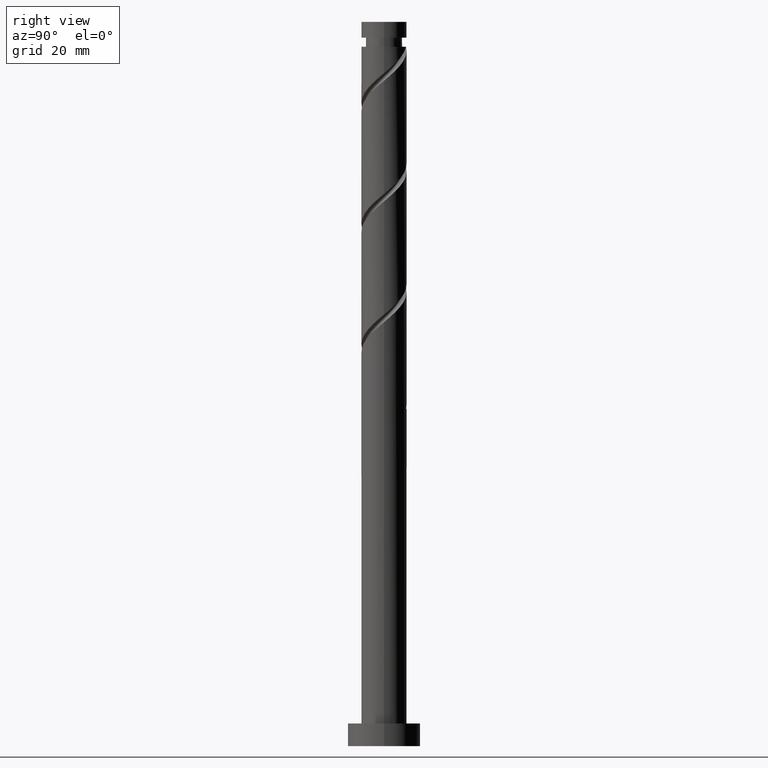
[diagram: clean part render]
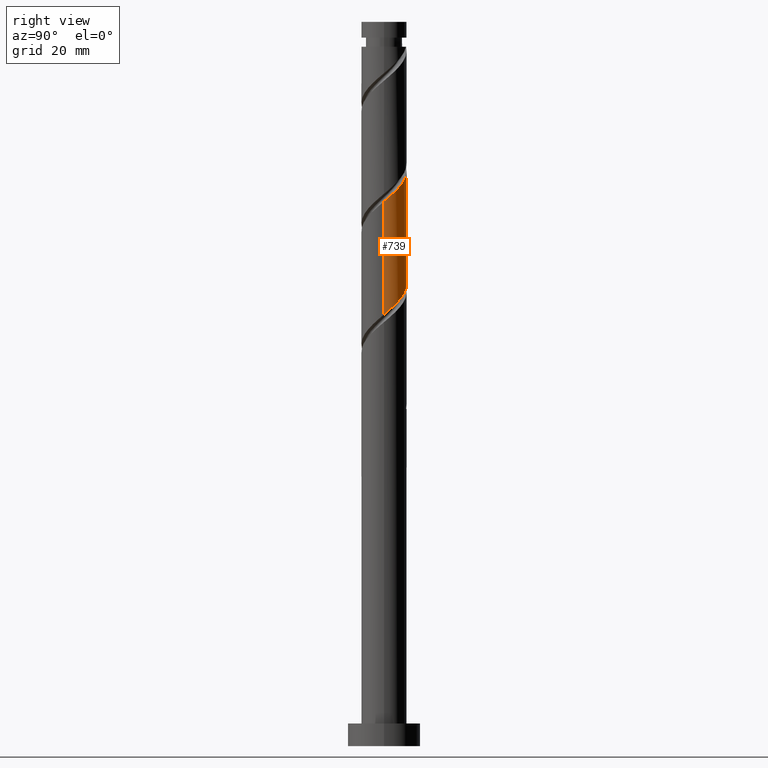
[diagram: same view with one face highlighted and labeled with its STEP entity id]
A machine part, right view. The second image highlights one B-rep face of the part: STEP entity #739.
In plain terms, the highlighted cylindrical surface (edge-blend (fillet) strip) has radius 5 mm, axis along (-0, -0, -1).
Its self-contained STEP definition (entity closure, byte-faithful):
#44 = EDGE_CURVE ( 'NONE', #786, #493, #669, .T. ) ;
#61 = CARTESIAN_POINT ( 'NONE',  ( -5.000000000000000000, 5.444282736072736138E-15, 108.6972831493244627 ) ) ;
#67 = VERTEX_POINT ( 'NONE', #547 ) ;
#78 = CARTESIAN_POINT ( 'NONE',  ( -3.051594711005884086, 3.960778928413059674, 104.8175256397205430 ) ) ;
#84 = AXIS2_PLACEMENT_3D ( 'NONE', #1584, #960, #1200 ) ;
#104 = CARTESIAN_POINT ( 'NONE',  ( 1.142085944100266204, 4.920614254530760512, 126.0296468518417612 ) ) ;
#108 = CARTESIAN_POINT ( 'NONE',  ( -5.000000000000007105, 2.886666395774807235E-15, 133.6650408573893003 ) ) ;
#121 =( BOUNDED_CURVE ( )  B_SPLINE_CURVE ( 2, ( #325, #1131, #1640, #1233, #618, #1480, #490, #986, #1141, #746, #602, #104, #1121, #1112, #843, #1495, #1257, #1488, #874, #1601, #714, #590, #1504, #1629, #482 ),
 .UNSPECIFIED., .F., .T. ) 
 B_SPLINE_CURVE_WITH_KNOTS ( ( 3, 2, 2, 2, 2, 2, 2, 2, 2, 2, 2, 2, 3 ),
 ( 0.4295252162417512731, 0.4318181818181817677, 0.4431818181818182323, 0.4545454545454545858, 0.4659090909090909394, 0.4772727272727272929, 0.4886363636363636465, 0.5000000000000000000, 0.5113636363636363535, 0.5227272727272727071, 0.5340909090909091717, 0.5454545454545454142, 0.5545252162417513286 ),
 .UNSPECIFIED. ) 
 CURVE ( )  GEOMETRIC_REPRESENTATION_ITEM ( )  RATIONAL_B_SPLINE_CURVE ( ( 0.9061101570135605687, 0.9072237824201427880, 0.9090909090909202739, 0.8998376744372226232, 0.9090909090909202739, 0.8998376744372226232, 0.9090909090909202739, 0.8998376744372226232, 0.9090909090909202739, 0.8998376744372226232, 0.9090909090909202739, 0.8998376744372226232, 0.9090909090909202739, 0.8998376744372226232, 0.9090909090909202739, 0.8998376744372226232, 0.9090909090909202739, 0.8998376744372226232, 0.9090909090909202739, 0.8998376744372226232, 0.9090909090909202739, 0.8998376744372226232, 0.9090909090909202739, 0.9017048011080002201, 0.9061101570135606798 ) ) 
 REPRESENTATION_ITEM ( '' )  );
#182 =( BOUNDED_CURVE ( )  B_SPLINE_CURVE ( 2, ( #61, #1638, #600, #1009, #1119, #1108, #218, #1375, #78, #1118, #984, #1368, #719, #1355, #974, #1590, #1361, #1000, #1478, #1485, #1627, #209, #1501, #1618, #443 ),
 .UNSPECIFIED., .F., .T. ) 
 B_SPLINE_CURVE_WITH_KNOTS ( ( 3, 2, 2, 2, 2, 2, 2, 2, 2, 2, 2, 2, 3 ),
 ( 0.6795252162417513286, 0.6818181818181817677, 0.6931818181818182323, 0.7045454545454545858, 0.7159090909090909394, 0.7272727272727272929, 0.7386363636363636465, 0.7500000000000000000, 0.7613636363636363535, 0.7727272727272727071, 0.7840909090909090606, 0.7954545454545454142, 0.8045252162417511066 ),
 .UNSPECIFIED. ) 
 CURVE ( )  GEOMETRIC_REPRESENTATION_ITEM ( )  RATIONAL_B_SPLINE_CURVE ( ( 0.9061101570135534633, 0.9072237824201356826, 0.9090909090909131685, 0.8998376744372155178, 0.9090909090909131685, 0.8998376744372155178, 0.9090909090909131685, 0.8998376744372155178, 0.9090909090909131685, 0.8998376744372155178, 0.9090909090909131685, 0.8998376744372155178, 0.9090909090909131685, 0.8998376744372155178, 0.9090909090909131685, 0.8998376744372155178, 0.9090909090909131685, 0.8998376744372155178, 0.9090909090909131685, 0.8998376744372155178, 0.9090909090909131685, 0.8998376744372155178, 0.9090909090909131685, 0.9017048011079931147, 0.9061101570135534633 ) ) 
 REPRESENTATION_ITEM ( '' )  );
#209 = CARTESIAN_POINT ( 'NONE',  ( 4.707993719930679610, 1.830737577780031655, 96.93873776093268191 ) ) ;
#218 = CARTESIAN_POINT ( 'NONE',  ( -4.043864058114778004, 2.940605971477216585, 106.0296468518417470 ) ) ;
#260 = EDGE_CURVE ( 'NONE', #67, #493, #182, .T. ) ;
#325 = CARTESIAN_POINT ( 'NONE',  ( 5.000000000000007994, 3.903730203612562477E-15, 120.3317075240560285 ) ) ;
#355 = EDGE_LOOP ( 'NONE', ( #1343, #425, #660, #963 ) ) ;
#425 = ORIENTED_EDGE ( 'NONE', *, *, #44, .T. ) ;
#443 = CARTESIAN_POINT ( 'NONE',  ( 5.000000000000000000, 7.343798965416794784E-15, 95.36394981599116250 ) ) ;
#482 = CARTESIAN_POINT ( 'NONE',  ( -5.000000000000007105, 2.886666395774807235E-15, 133.6650408573893003 ) ) ;
#490 = CARTESIAN_POINT ( 'NONE',  ( 4.043864058114788662, 2.940605971477221026, 122.9993438215387158 ) ) ;
#493 = VERTEX_POINT ( 'NONE', #1403 ) ;
#512 = EDGE_CURVE ( 'NONE', #1416, #67, #625, .T. ) ;
#547 = CARTESIAN_POINT ( 'NONE',  ( -5.000000000000000000, 5.444282736072736138E-15, 108.6972831493244627 ) ) ;
#590 = CARTESIAN_POINT ( 'NONE',  ( -4.707993719930686716, 1.830737577780038539, 132.0902529124477951 ) ) ;
#600 = CARTESIAN_POINT ( 'NONE',  ( -4.991726541412347729, 0.2875171921111933648, 108.4538892760841691 ) ) ;
#602 = CARTESIAN_POINT ( 'NONE',  ( 1.812103308943843416, 4.660073132228168546, 125.4235862457811805 ) ) ;
#618 = CARTESIAN_POINT ( 'NONE',  ( 4.708523589020798816, 1.682202607189387411, 121.7872226094175261 ) ) ;
#625 = LINE ( 'NONE', #1150, #1635 ) ;
#660 = ORIENTED_EDGE ( 'NONE', *, *, #260, .F. ) ;
#669 = LINE ( 'NONE', #679, #965 ) ;
#679 = CARTESIAN_POINT ( 'NONE',  ( 5.000000000000000000, 6.123233995736766282E-16, 160.0000000000000000 ) ) ;
#714 = CARTESIAN_POINT ( 'NONE',  ( -4.354751117665853322, 2.456856264250738331, 131.4841923063872571 ) ) ;
#719 = CARTESIAN_POINT ( 'NONE',  ( -0.4258060737845053567, 4.981835925392186226, 102.3932832154781067 ) ) ;
#739 = ADVANCED_FACE ( 'NONE', ( #1026 ), #1527, .T. ) ;
#746 = CARTESIAN_POINT ( 'NONE',  ( 2.482120673787420628, 4.399532009925577469, 124.8175256397205430 ) ) ;
#786 = VERTEX_POINT ( 'NONE', #1068 ) ;
#843 = CARTESIAN_POINT ( 'NONE',  ( -0.9949874371066209644, 4.900000000000007461, 127.8478286700235884 ) ) ;
#874 = CARTESIAN_POINT ( 'NONE',  ( -3.486176702121021709, 3.584211489517420635, 130.2720710942660105 ) ) ;
#888 = DIRECTION ( 'NONE',  ( -0.000000000000000000, -0.000000000000000000, -1.000000000000000000 ) ) ;
#960 = DIRECTION ( 'NONE',  ( -0.000000000000000000, -0.000000000000000000, -1.000000000000000000 ) ) ;
#963 = ORIENTED_EDGE ( 'NONE', *, *, #512, .F. ) ;
#965 = VECTOR ( 'NONE', #1052, 1000.000000000000000 ) ;
#974 = CARTESIAN_POINT ( 'NONE',  ( 0.9949874371066227408, 4.899999999999999467, 101.1811620033569170 ) ) ;
#984 = CARTESIAN_POINT ( 'NONE',  ( -1.812103308943839419, 4.660073132228159665, 103.6054044275993249 ) ) ;
#986 = CARTESIAN_POINT ( 'NONE',  ( 3.621068748224361311, 3.522025846900553869, 123.6054044275993249 ) ) ;
#992 = EDGE_CURVE ( 'NONE', #786, #1416, #121, .T. ) ;
#1000 = CARTESIAN_POINT ( 'NONE',  ( 2.970844888841020381, 4.085448028313394708, 99.36298018517511821 ) ) ;
#1009 = CARTESIAN_POINT ( 'NONE',  ( -4.950387810036377623, 1.005219118324889305, 107.8478286700236168 ) ) ;
#1026 = FACE_OUTER_BOUND ( 'NONE', #355, .T. ) ;
#1052 = DIRECTION ( 'NONE',  ( -0.000000000000000000, -0.000000000000000000, -1.000000000000000000 ) ) ;
#1068 = CARTESIAN_POINT ( 'NONE',  ( 5.000000000000007994, 3.903730203612562477E-15, 120.3317075240560285 ) ) ;
#1108 = CARTESIAN_POINT ( 'NONE',  ( -4.466659368005205799, 2.359186096053885517, 106.6357074579023845 ) ) ;
#1112 = CARTESIAN_POINT ( 'NONE',  ( -0.2904737965312511050, 5.043057596253627928, 127.2417680639629509 ) ) ;
#1118 = CARTESIAN_POINT ( 'NONE',  ( -2.482120673787417964, 4.399532009925572140, 104.2114650336599624 ) ) ;
#1119 = CARTESIAN_POINT ( 'NONE',  ( -4.708523589020789935, 1.682202607189386523, 107.2417680639629651 ) ) ;
#1121 = CARTESIAN_POINT ( 'NONE',  ( 0.4258060737845075217, 4.981835925392195996, 126.6357074579023703 ) ) ;
#1131 = CARTESIAN_POINT ( 'NONE',  ( 5.000000000000006217, 0.1438776326191107680, 120.4538055287742111 ) ) ;
#1141 = CARTESIAN_POINT ( 'NONE',  ( 3.051594711005889859, 3.960778928413066780, 124.2114650336599055 ) ) ;
#1150 = CARTESIAN_POINT ( 'NONE',  ( -5.000000000000000000, 0.000000000000000000, 160.0000000000000000 ) ) ;
#1200 = DIRECTION ( 'NONE',  ( -1.000000000000000000, 0.000000000000000000, 0.000000000000000000 ) ) ;
#1233 = CARTESIAN_POINT ( 'NONE',  ( 4.950387810036383840, 1.005219118324888861, 121.1811620033569028 ) ) ;
#1257 = CARTESIAN_POINT ( 'NONE',  ( -2.335172983261508683, 4.421195216029893515, 129.0599498821448208 ) ) ;
#1343 = ORIENTED_EDGE ( 'NONE', *, *, #992, .F. ) ;
#1355 = CARTESIAN_POINT ( 'NONE',  ( 0.2904737965312522707, 5.043057596253619046, 101.7872226094175261 ) ) ;
#1361 = CARTESIAN_POINT ( 'NONE',  ( 2.335172983261505131, 4.421195216029886410, 99.96904079123568465 ) ) ;
#1368 = CARTESIAN_POINT ( 'NONE',  ( -1.142085944100262873, 4.920614254530754295, 102.9993438215387584 ) ) ;
#1375 = CARTESIAN_POINT ( 'NONE',  ( -3.621068748224353318, 3.522025846900549428, 105.4235862457811663 ) ) ;
#1403 = CARTESIAN_POINT ( 'NONE',  ( 5.000000000000000000, 7.343798965416794784E-15, 95.36394981599116250 ) ) ;
#1416 = VERTEX_POINT ( 'NONE', #108 ) ;
#1478 = CARTESIAN_POINT ( 'NONE',  ( 3.486176702121014603, 3.584211489517413085, 98.75691957911446650 ) ) ;
#1480 = CARTESIAN_POINT ( 'NONE',  ( 4.466659368005212905, 2.359186096053887294, 122.3932832154781210 ) ) ;
#1485 = CARTESIAN_POINT ( 'NONE',  ( 4.001508515401011934, 3.082974950721432350, 98.15085897305391427 ) ) ;
#1488 = CARTESIAN_POINT ( 'NONE',  ( -2.970844888841024378, 4.085448028313403590, 129.6660104882053588 ) ) ;
#1495 = CARTESIAN_POINT ( 'NONE',  ( -1.699501077681992545, 4.756942403746386105, 128.4538892760841691 ) ) ;
#1501 = CARTESIAN_POINT ( 'NONE',  ( 4.870529496359501387, 1.130461155941266949, 96.33267715487204441 ) ) ;
#1504 = CARTESIAN_POINT ( 'NONE',  ( -4.870529496359508492, 1.130461155941271612, 132.6963135185084184 ) ) ;
#1527 = CYLINDRICAL_SURFACE ( 'NONE', #84, 5.000000000000000000 ) ;
#1584 = CARTESIAN_POINT ( 'NONE',  ( 0.000000000000000000, 0.000000000000000000, 160.0000000000000000 ) ) ;
#1590 = CARTESIAN_POINT ( 'NONE',  ( 1.699501077681990990, 4.756942403746378112, 100.5751013972963079 ) ) ;
#1601 = CARTESIAN_POINT ( 'NONE',  ( -4.001508515401018151, 3.082974950721436791, 130.8781317003265769 ) ) ;
#1618 = CARTESIAN_POINT ( 'NONE',  ( 4.999999999999998224, 0.5726446369256228408, 95.84990976896244774 ) ) ;
#1627 = CARTESIAN_POINT ( 'NONE',  ( 4.354751117665844440, 2.456856264250733446, 97.54479836699326256 ) ) ;
#1629 = CARTESIAN_POINT ( 'NONE',  ( -5.000000000000006217, 0.5726446369256186220, 133.1790809044180151 ) ) ;
#1635 = VECTOR ( 'NONE', #888, 1000.000000000000000 ) ;
#1638 = CARTESIAN_POINT ( 'NONE',  ( -5.000000000000000000, 0.1438776326191157084, 108.5751851446062233 ) ) ;
#1640 = CARTESIAN_POINT ( 'NONE',  ( 4.991726541412356610, 0.2875171921111920881, 120.5751013972962937 ) ) ;